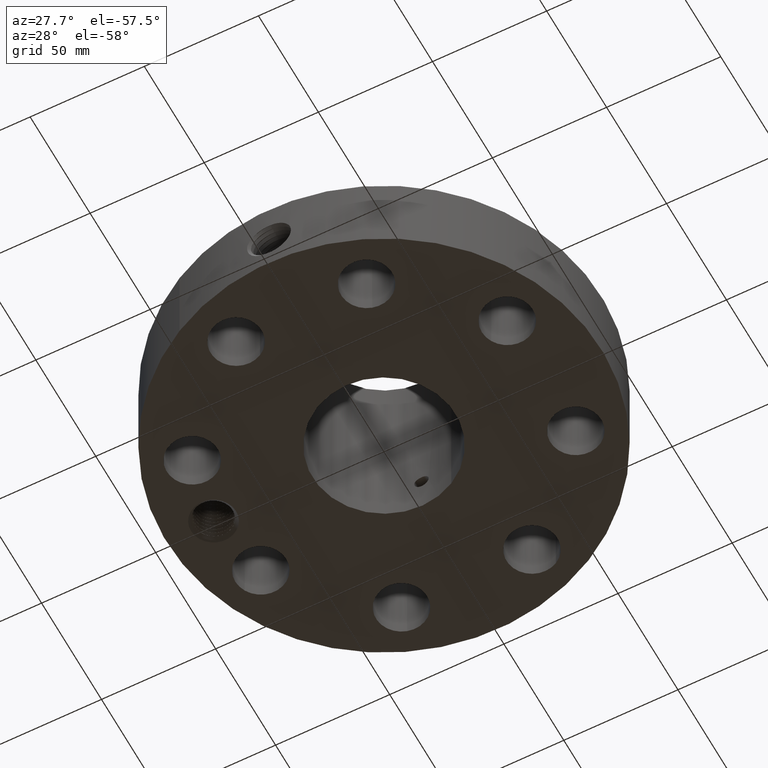
[diagram: clean part render]
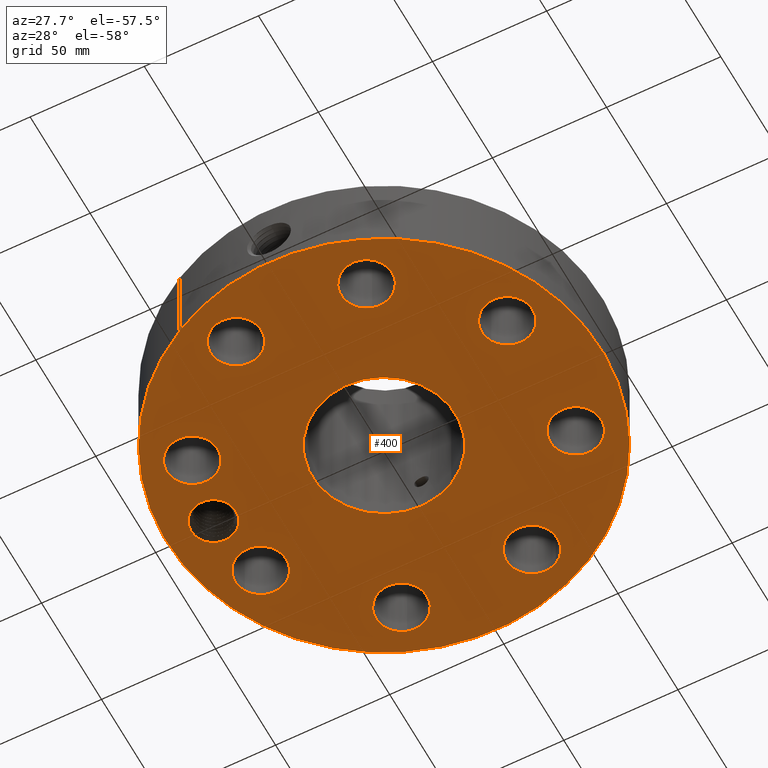
[diagram: same view with one face highlighted and labeled with its STEP entity id]
A machine part, auxiliary view. The second image highlights one B-rep face of the part: STEP entity #400.
In plain terms, the highlighted planar face has unit normal (0, 0, -1).
Its self-contained STEP definition (entity closure, byte-faithful):
#42=AXIS2_PLACEMENT_3D('Circle Axis2P3D',#40,#41,$) ;
#209=AXIS2_PLACEMENT_3D('Plane Axis2P3D',#206,#207,#208) ;
#213=AXIS2_PLACEMENT_3D('Circle Axis2P3D',#211,#212,$) ;
#222=AXIS2_PLACEMENT_3D('Circle Axis2P3D',#220,#221,$) ;
#231=AXIS2_PLACEMENT_3D('Circle Axis2P3D',#229,#230,$) ;
#240=AXIS2_PLACEMENT_3D('Circle Axis2P3D',#238,#239,$) ;
#249=AXIS2_PLACEMENT_3D('Circle Axis2P3D',#247,#248,$) ;
#258=AXIS2_PLACEMENT_3D('Circle Axis2P3D',#256,#257,$) ;
#267=AXIS2_PLACEMENT_3D('Circle Axis2P3D',#265,#266,$) ;
#276=AXIS2_PLACEMENT_3D('Circle Axis2P3D',#274,#275,$) ;
#285=AXIS2_PLACEMENT_3D('Circle Axis2P3D',#283,#284,$) ;
#294=AXIS2_PLACEMENT_3D('Circle Axis2P3D',#292,#293,$) ;
#303=AXIS2_PLACEMENT_3D('Circle Axis2P3D',#301,#302,$) ;
#312=AXIS2_PLACEMENT_3D('Circle Axis2P3D',#310,#311,$) ;
#321=AXIS2_PLACEMENT_3D('Circle Axis2P3D',#319,#320,$) ;
#330=AXIS2_PLACEMENT_3D('Circle Axis2P3D',#328,#329,$) ;
#339=AXIS2_PLACEMENT_3D('Circle Axis2P3D',#337,#338,$) ;
#348=AXIS2_PLACEMENT_3D('Circle Axis2P3D',#346,#347,$) ;
#357=AXIS2_PLACEMENT_3D('Circle Axis2P3D',#355,#356,$) ;
#366=AXIS2_PLACEMENT_3D('Circle Axis2P3D',#364,#365,$) ;
#375=AXIS2_PLACEMENT_3D('Circle Axis2P3D',#373,#374,$) ;
#384=AXIS2_PLACEMENT_3D('Circle Axis2P3D',#382,#383,$) ;
#393=AXIS2_PLACEMENT_3D('Circle Axis2P3D',#391,#392,$) ;
#40=CARTESIAN_POINT('Axis2P3D Location',(0.,0.,0.250000000001)) ;
#44=CARTESIAN_POINT('Vertex',(-1.79784576977,-3.2909346071,0.250000000001)) ;
#46=CARTESIAN_POINT('Vertex',(1.79784576977,3.2909346071,0.250000000001)) ;
#206=CARTESIAN_POINT('Axis2P3D Location',(0.,1.2345,0.250000000001)) ;
#211=CARTESIAN_POINT('Axis2P3D Location',(0.,0.,0.250000000001)) ;
#220=CARTESIAN_POINT('Axis2P3D Location',(-2.94000000001,0.,0.250000000001)) ;
#224=CARTESIAN_POINT('Vertex',(-2.59936632861,-0.18608902281,0.250000000001)) ;
#226=CARTESIAN_POINT('Vertex',(-3.28063367141,0.18608902281,0.250000000001)) ;
#229=CARTESIAN_POINT('Axis2P3D Location',(-2.94000000001,0.,0.250000000001)) ;
#238=CARTESIAN_POINT('Axis2P3D Location',(2.71620582559,-1.12508929116,0.250000000001)) ;
#242=CARTESIAN_POINT('Vertex',(3.10234215283,-1.33603652814,0.250000000001)) ;
#244=CARTESIAN_POINT('Vertex',(2.33006949836,-0.914142054171,0.250000000001)) ;
#247=CARTESIAN_POINT('Axis2P3D Location',(2.71620582559,-1.12508929116,0.250000000001)) ;
#256=CARTESIAN_POINT('Axis2P3D Location',(0.,0.,0.250000000001)) ;
#260=CARTESIAN_POINT('Vertex',(0.591850827409,1.08337567266,0.250000000001)) ;
#262=CARTESIAN_POINT('Vertex',(-0.591850827409,-1.08337567266,0.250000000001)) ;
#265=CARTESIAN_POINT('Axis2P3D Location',(0.,0.,0.250000000001)) ;
#274=CARTESIAN_POINT('Axis2P3D Location',(1.12508929116,-2.71620582559,0.250000000001)) ;
#278=CARTESIAN_POINT('Vertex',(1.00121189745,-2.2940039884,0.250000000001)) ;
#280=CARTESIAN_POINT('Vertex',(1.24896668486,-3.13840766279,0.250000000001)) ;
#283=CARTESIAN_POINT('Axis2P3D Location',(1.12508929116,-2.71620582559,0.250000000001)) ;
#292=CARTESIAN_POINT('Axis2P3D Location',(-1.12508929116,-2.71620582559,0.250000000001)) ;
#296=CARTESIAN_POINT('Vertex',(-0.914142054171,-2.33006949836,0.250000000001)) ;
#298=CARTESIAN_POINT('Vertex',(-1.33603652814,-3.10234215283,0.250000000001)) ;
#301=CARTESIAN_POINT('Axis2P3D Location',(-1.12508929116,-2.71620582559,0.250000000001)) ;
#310=CARTESIAN_POINT('Axis2P3D Location',(-2.71620582559,-1.12508929116,0.250000000001)) ;
#314=CARTESIAN_POINT('Vertex',(-2.2940039884,-1.00121189745,0.250000000001)) ;
#316=CARTESIAN_POINT('Vertex',(-3.13840766279,-1.24896668486,0.250000000001)) ;
#319=CARTESIAN_POINT('Axis2P3D Location',(-2.71620582559,-1.12508929116,0.250000000001)) ;
#328=CARTESIAN_POINT('Axis2P3D Location',(-2.71620582559,1.12508929116,0.250000000001)) ;
#332=CARTESIAN_POINT('Vertex',(-2.33006949836,0.914142054171,0.250000000001)) ;
#334=CARTESIAN_POINT('Vertex',(-3.10234215283,1.33603652814,0.250000000001)) ;
#337=CARTESIAN_POINT('Axis2P3D Location',(-2.71620582559,1.12508929116,0.250000000001)) ;
#346=CARTESIAN_POINT('Axis2P3D Location',(-1.12508929116,2.71620582559,0.250000000001)) ;
#350=CARTESIAN_POINT('Vertex',(-1.00121189745,2.2940039884,0.250000000001)) ;
#352=CARTESIAN_POINT('Vertex',(-1.24896668486,3.13840766279,0.250000000001)) ;
#355=CARTESIAN_POINT('Axis2P3D Location',(-1.12508929116,2.71620582559,0.250000000001)) ;
#364=CARTESIAN_POINT('Axis2P3D Location',(1.12508929116,2.71620582559,0.250000000001)) ;
#368=CARTESIAN_POINT('Vertex',(0.914142054171,2.33006949836,0.250000000001)) ;
#370=CARTESIAN_POINT('Vertex',(1.33603652814,3.10234215283,0.250000000001)) ;
#373=CARTESIAN_POINT('Axis2P3D Location',(1.12508929116,2.71620582559,0.250000000001)) ;
#382=CARTESIAN_POINT('Axis2P3D Location',(2.71620582559,1.12508929116,0.250000000001)) ;
#386=CARTESIAN_POINT('Vertex',(2.2940039884,1.00121189745,0.250000000001)) ;
#388=CARTESIAN_POINT('Vertex',(3.13840766279,1.24896668486,0.250000000001)) ;
#391=CARTESIAN_POINT('Axis2P3D Location',(2.71620582559,1.12508929116,0.250000000001)) ;
#41=DIRECTION('Axis2P3D Direction',(0.,0.,-0.0393700787402)) ;
#207=DIRECTION('Axis2P3D Direction',(0.,0.,-0.0393700787402)) ;
#208=DIRECTION('Axis2P3D XDirection',(0.0393700787402,0.,0.)) ;
#212=DIRECTION('Axis2P3D Direction',(0.,0.,-0.0393700787402)) ;
#221=DIRECTION('Axis2P3D Direction',(0.,0.,-0.0393700787402)) ;
#230=DIRECTION('Axis2P3D Direction',(0.,0.,-0.0393700787402)) ;
#239=DIRECTION('Axis2P3D Direction',(0.,0.,-0.0393700787402)) ;
#248=DIRECTION('Axis2P3D Direction',(0.,0.,-0.0393700787402)) ;
#257=DIRECTION('Axis2P3D Direction',(0.,0.,-0.0393700787402)) ;
#266=DIRECTION('Axis2P3D Direction',(0.,0.,-0.0393700787402)) ;
#275=DIRECTION('Axis2P3D Direction',(0.,0.,-0.0393700787402)) ;
#284=DIRECTION('Axis2P3D Direction',(0.,0.,-0.0393700787402)) ;
#293=DIRECTION('Axis2P3D Direction',(0.,0.,-0.0393700787402)) ;
#302=DIRECTION('Axis2P3D Direction',(0.,0.,-0.0393700787402)) ;
#311=DIRECTION('Axis2P3D Direction',(0.,0.,-0.0393700787402)) ;
#320=DIRECTION('Axis2P3D Direction',(0.,0.,-0.0393700787402)) ;
#329=DIRECTION('Axis2P3D Direction',(0.,0.,-0.0393700787402)) ;
#338=DIRECTION('Axis2P3D Direction',(0.,0.,-0.0393700787402)) ;
#347=DIRECTION('Axis2P3D Direction',(0.,0.,-0.0393700787402)) ;
#356=DIRECTION('Axis2P3D Direction',(0.,0.,-0.0393700787402)) ;
#365=DIRECTION('Axis2P3D Direction',(0.,0.,-0.0393700787402)) ;
#374=DIRECTION('Axis2P3D Direction',(0.,0.,-0.0393700787402)) ;
#383=DIRECTION('Axis2P3D Direction',(0.,0.,-0.0393700787402)) ;
#392=DIRECTION('Axis2P3D Direction',(0.,0.,-0.0393700787402)) ;
#217=ORIENTED_EDGE('',*,*,#48,.T.) ;
#218=ORIENTED_EDGE('',*,*,#215,.T.) ;
#235=ORIENTED_EDGE('',*,*,#228,.F.) ;
#236=ORIENTED_EDGE('',*,*,#233,.F.) ;
#253=ORIENTED_EDGE('',*,*,#246,.F.) ;
#254=ORIENTED_EDGE('',*,*,#251,.F.) ;
#271=ORIENTED_EDGE('',*,*,#264,.F.) ;
#272=ORIENTED_EDGE('',*,*,#269,.F.) ;
#289=ORIENTED_EDGE('',*,*,#282,.F.) ;
#290=ORIENTED_EDGE('',*,*,#287,.F.) ;
#307=ORIENTED_EDGE('',*,*,#300,.F.) ;
#308=ORIENTED_EDGE('',*,*,#305,.F.) ;
#325=ORIENTED_EDGE('',*,*,#318,.F.) ;
#326=ORIENTED_EDGE('',*,*,#323,.F.) ;
#343=ORIENTED_EDGE('',*,*,#336,.F.) ;
#344=ORIENTED_EDGE('',*,*,#341,.F.) ;
#361=ORIENTED_EDGE('',*,*,#354,.F.) ;
#362=ORIENTED_EDGE('',*,*,#359,.F.) ;
#379=ORIENTED_EDGE('',*,*,#372,.F.) ;
#380=ORIENTED_EDGE('',*,*,#377,.F.) ;
#397=ORIENTED_EDGE('',*,*,#390,.F.) ;
#398=ORIENTED_EDGE('',*,*,#395,.F.) ;
#237=FACE_BOUND('',#234,.T.) ;
#255=FACE_BOUND('',#252,.T.) ;
#273=FACE_BOUND('',#270,.T.) ;
#291=FACE_BOUND('',#288,.T.) ;
#309=FACE_BOUND('',#306,.T.) ;
#327=FACE_BOUND('',#324,.T.) ;
#345=FACE_BOUND('',#342,.T.) ;
#363=FACE_BOUND('',#360,.T.) ;
#381=FACE_BOUND('',#378,.T.) ;
#399=FACE_BOUND('',#396,.T.) ;
#400=ADVANCED_FACE('PartBody',(#219,#237,#255,#273,#291,#309,#327,#345,#363,#381,#399),#210,.T.) ;
#43=CIRCLE('generated circle',#42,3.75000000002) ;
#214=CIRCLE('generated circle',#213,3.75000000002) ;
#223=CIRCLE('generated circle',#222,0.388150000002) ;
#232=CIRCLE('generated circle',#231,0.388150000002) ;
#241=CIRCLE('generated circle',#240,0.440000000002) ;
#250=CIRCLE('generated circle',#249,0.440000000002) ;
#259=CIRCLE('generated circle',#258,1.2345) ;
#268=CIRCLE('generated circle',#267,1.2345) ;
#277=CIRCLE('generated circle',#276,0.440000000002) ;
#286=CIRCLE('generated circle',#285,0.440000000002) ;
#295=CIRCLE('generated circle',#294,0.440000000002) ;
#304=CIRCLE('generated circle',#303,0.440000000002) ;
#313=CIRCLE('generated circle',#312,0.440000000002) ;
#322=CIRCLE('generated circle',#321,0.440000000002) ;
#331=CIRCLE('generated circle',#330,0.440000000002) ;
#340=CIRCLE('generated circle',#339,0.440000000002) ;
#349=CIRCLE('generated circle',#348,0.440000000002) ;
#358=CIRCLE('generated circle',#357,0.440000000002) ;
#367=CIRCLE('generated circle',#366,0.440000000002) ;
#376=CIRCLE('generated circle',#375,0.440000000002) ;
#385=CIRCLE('generated circle',#384,0.440000000002) ;
#394=CIRCLE('generated circle',#393,0.440000000002) ;
#48=EDGE_CURVE('',#45,#47,#43,.T.) ;
#215=EDGE_CURVE('',#47,#45,#214,.T.) ;
#228=EDGE_CURVE('',#225,#227,#223,.T.) ;
#233=EDGE_CURVE('',#227,#225,#232,.T.) ;
#246=EDGE_CURVE('',#243,#245,#241,.T.) ;
#251=EDGE_CURVE('',#245,#243,#250,.T.) ;
#264=EDGE_CURVE('',#261,#263,#259,.T.) ;
#269=EDGE_CURVE('',#263,#261,#268,.T.) ;
#282=EDGE_CURVE('',#279,#281,#277,.T.) ;
#287=EDGE_CURVE('',#281,#279,#286,.T.) ;
#300=EDGE_CURVE('',#297,#299,#295,.T.) ;
#305=EDGE_CURVE('',#299,#297,#304,.T.) ;
#318=EDGE_CURVE('',#315,#317,#313,.T.) ;
#323=EDGE_CURVE('',#317,#315,#322,.T.) ;
#336=EDGE_CURVE('',#333,#335,#331,.T.) ;
#341=EDGE_CURVE('',#335,#333,#340,.T.) ;
#354=EDGE_CURVE('',#351,#353,#349,.T.) ;
#359=EDGE_CURVE('',#353,#351,#358,.T.) ;
#372=EDGE_CURVE('',#369,#371,#367,.T.) ;
#377=EDGE_CURVE('',#371,#369,#376,.T.) ;
#390=EDGE_CURVE('',#387,#389,#385,.T.) ;
#395=EDGE_CURVE('',#389,#387,#394,.T.) ;
#216=EDGE_LOOP('',(#217,#218)) ;
#234=EDGE_LOOP('',(#235,#236)) ;
#252=EDGE_LOOP('',(#253,#254)) ;
#270=EDGE_LOOP('',(#271,#272)) ;
#288=EDGE_LOOP('',(#289,#290)) ;
#306=EDGE_LOOP('',(#307,#308)) ;
#324=EDGE_LOOP('',(#325,#326)) ;
#342=EDGE_LOOP('',(#343,#344)) ;
#360=EDGE_LOOP('',(#361,#362)) ;
#378=EDGE_LOOP('',(#379,#380)) ;
#396=EDGE_LOOP('',(#397,#398)) ;
#219=FACE_OUTER_BOUND('',#216,.T.) ;
#210=PLANE('',#209) ;
#45=VERTEX_POINT('',#44) ;
#47=VERTEX_POINT('',#46) ;
#225=VERTEX_POINT('',#224) ;
#227=VERTEX_POINT('',#226) ;
#243=VERTEX_POINT('',#242) ;
#245=VERTEX_POINT('',#244) ;
#261=VERTEX_POINT('',#260) ;
#263=VERTEX_POINT('',#262) ;
#279=VERTEX_POINT('',#278) ;
#281=VERTEX_POINT('',#280) ;
#297=VERTEX_POINT('',#296) ;
#299=VERTEX_POINT('',#298) ;
#315=VERTEX_POINT('',#314) ;
#317=VERTEX_POINT('',#316) ;
#333=VERTEX_POINT('',#332) ;
#335=VERTEX_POINT('',#334) ;
#351=VERTEX_POINT('',#350) ;
#353=VERTEX_POINT('',#352) ;
#369=VERTEX_POINT('',#368) ;
#371=VERTEX_POINT('',#370) ;
#387=VERTEX_POINT('',#386) ;
#389=VERTEX_POINT('',#388) ;